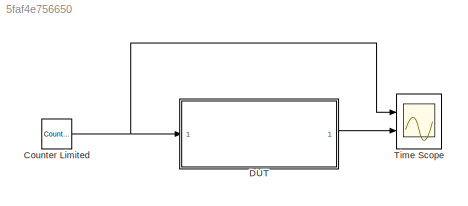
MODEL slx_5faf4e756650
KIND model
CONFIG AbsTol = auto
CONFIG FixedStep = auto
CONFIG MaxStep = auto
CONFIG MinStep = auto
CONFIG RelTol = 1e-3
CONFIG SampleTimeConstraint = Unconstrained
CONFIG Solver = FixedStepDiscrete
CONFIG SolverMode = SingleTasking
CONFIG SolverName = FixedStepDiscrete
CONFIG StartTime = 0.0
CONFIG StopTime = 2
BLOCK [Reference] Counter Limited  REF=simulink/Sources/Counter
Limited
  Ports = [0, 1]
  SourceBlock = simulink/Sources/Counter\nLimited
  SourceType = Counter Limited
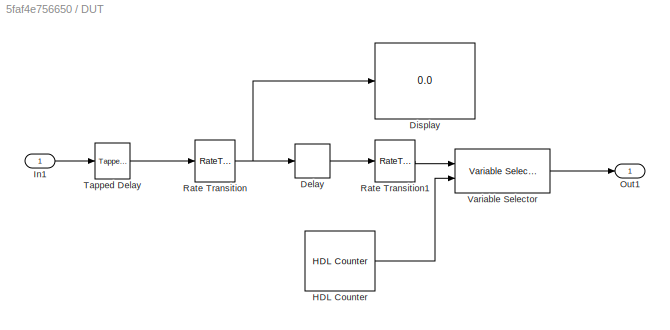
BLOCK [SubSystem] DUT
  Ports = [1, 1]
  RequestExecContextInheritance = off
  Variant = off
BLOCK [Delay] DUT/Delay
  InputPortMap = u0
  Ports = [1, 1]
BLOCK [Display] DUT/Display
  Decimation = 1
  Ports = [1]
BLOCK [Reference] DUT/HDL Counter  REF=hdlsllib/HDL Operations/HDL Counter
  Ports = [0, 1]
  SourceBlock = hdlsllib/HDL Operations/HDL Counter
  SourceType = HDL Counter
BLOCK [Inport] DUT/In1
  IconDisplay = Port number
BLOCK [Outport] DUT/Out1
  IconDisplay = Port number
BLOCK [RateTransition] DUT/Rate Transition
  OutPortSampleTimeMultiple = 16
  OutPortSampleTimeOpt = Multiple of input port sample time
BLOCK [RateTransition] DUT/Rate Transition1
  OutPortSampleTimeMultiple = 1/16
  OutPortSampleTimeOpt = Multiple of input port sample time
BLOCK [Reference] DUT/Tapped Delay  REF=simulink/Discrete/Tapped Delay
  Ports = [1, 1]
  SourceBlock = simulink/Discrete/Tapped Delay
  SourceType = Tapped Delay Line
BLOCK [Reference] DUT/Variable Selector  REF=dspindex/Variable
Selector
  Ports = [2, 1]
  SourceBlock = dspindex/Variable\nSelector
  SourceType = Variable Selector
BLOCK [Scope] Time Scope
  DefaultConfigurationName = spbscopes.TimeScopeBlockCfg
  NumInputPorts = 2
  Ports = [2]
  ScopeSpecificationString = spbscopes.TimeScopeBlockCfg('CurrentConfiguration', extmgr.ConfigurationSet(extmgr.Configuration('Core','General UI',true),extmgr.Configuration('Core','Source UI',true),extmgr.Configuration('Sources','WiredSimulink',true),extmgr.Configuration('Visuals','Time Domain',true,'DisplayLayoutDimensions',[2 1],'DisplayPropertyDefaults',struct('YLabelReal','Amplitude','MinYLimMag','0','LegendVisibility','o...<+1825ch>
NET Counter Limited:1 -> DUT:1, Time Scope:1
LINE DUT/Delay:1 -> DUT/Rate Transition1:1
LINE DUT/HDL Counter:1 -> DUT/Variable Selector:2
LINE DUT/In1:1 -> DUT/Tapped Delay:1
LINE DUT/Rate Transition1:1 -> DUT/Variable Selector:1
NET DUT/Rate Transition:1 -> DUT/Delay:1, DUT/Display:1
LINE DUT/Tapped Delay:1 -> DUT/Rate Transition:1
LINE DUT/Variable Selector:1 -> DUT/Out1:1
LINE DUT:1 -> Time Scope:2
note: NET lines group one-source signal fan-out (src -> all destinations, sorted); 1:1 wires keep LINE
